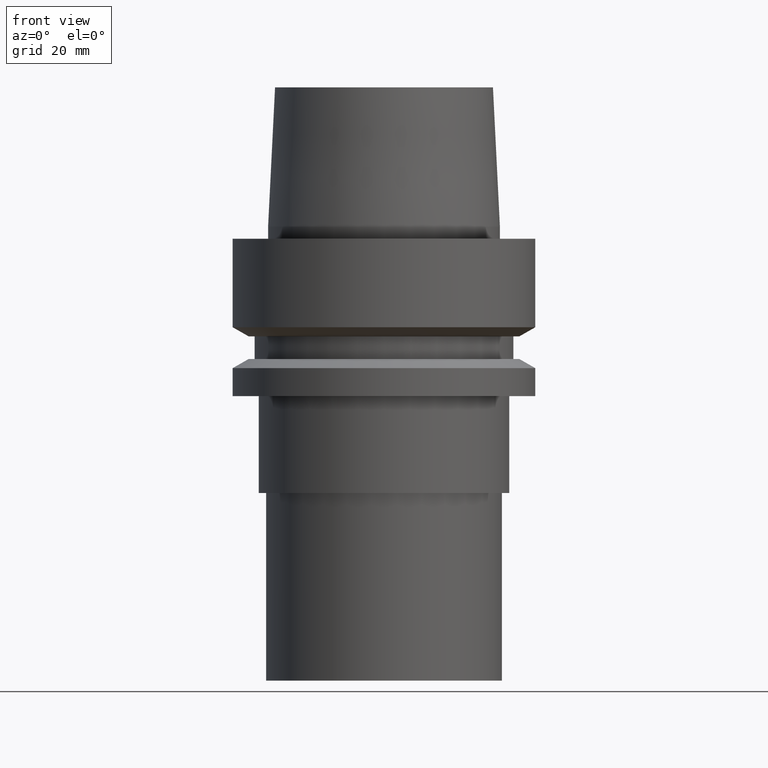
[diagram: clean part render]
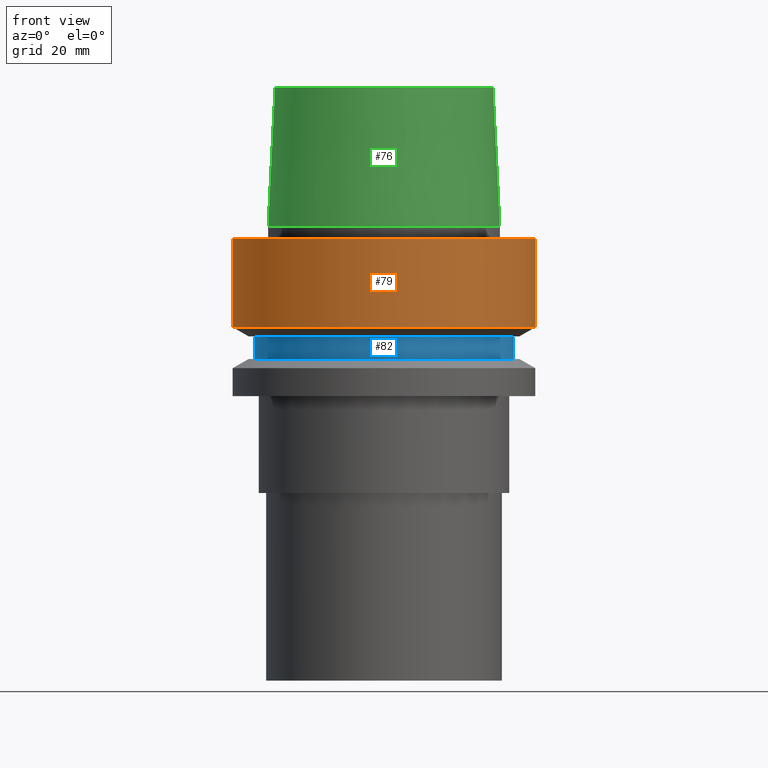
[diagram: same view with three faces highlighted in distinct colors, each labeled with its STEP entity id]
A machine part, front view with three faces highlighted in distinct colors.
Their STEP definitions:

[orange] entity #79 — the highlighted cylindrical surface (bore or boss wall) has radius 25 mm, axis along (-0, -0, 1).
#79=ADVANCED_FACE('',(#103,#104),#105,.T.);
#103=FACE_BOUND('',#149,.T.);
#104=FACE_BOUND('',#150,.T.);
#105=CYLINDRICAL_SURFACE('',#151,25.0);
#149=EDGE_LOOP('',(#203));
#150=EDGE_LOOP('',(#204));
#151=AXIS2_PLACEMENT_3D('',#205,#206,#207);
#203=ORIENTED_EDGE('',*,*,#266,.F.);
#204=ORIENTED_EDGE('',*,*,#265,.T.);
#205=CARTESIAN_POINT('',(4.47684973986342E-016,8.95369947972685E-016,-7.311250465));
#206=DIRECTION('',(-6.12323399573677E-017,-1.22464679914735E-016,1.0));
#207=DIRECTION('',(-1.23259516440783E-032,1.0,1.22464679914735E-016));
#265=EDGE_CURVE('',#283,#283,#284,.T.);
#266=EDGE_CURVE('',#285,#285,#286,.T.);
#283=VERTEX_POINT('',#313);
#284=CIRCLE('',#314,25.0);
#285=VERTEX_POINT('',#315);
#286=CIRCLE('',#316,25.0);
#313=CARTESIAN_POINT('',(-3.08148791101958E-031,25.0,3.06161699786838E-015));
#314=AXIS2_PLACEMENT_3D('',#346,#347,#348);
#315=CARTESIAN_POINT('',(8.95369947972684E-016,25.0,-14.62250093));
#316=AXIS2_PLACEMENT_3D('',#349,#350,#351);
#346=CARTESIAN_POINT('',(0.0,0.0,0.0));
#347=DIRECTION('',(6.12323399573677E-017,1.22464679914735E-016,-1.0));
#348=DIRECTION('',(-1.23259516440783E-032,1.0,1.22464679914735E-016));
#349=CARTESIAN_POINT('',(8.95369947972685E-016,1.79073989594537E-015,-14.62250093));
#350=DIRECTION('',(6.12323399573677E-017,1.22464679914735E-016,-1.0));
#351=DIRECTION('',(-1.23259516440783E-032,1.0,1.22464679914735E-016));

[blue] entity #82 — the highlighted cylindrical surface (bore or boss wall) has radius 21.5 mm, axis along (-0, -0, 1).
#82=ADVANCED_FACE('',(#112,#113),#114,.T.);
#112=FACE_BOUND('',#158,.T.);
#113=FACE_BOUND('',#159,.T.);
#114=CYLINDRICAL_SURFACE('',#160,21.5);
#158=EDGE_LOOP('',(#218));
#159=EDGE_LOOP('',(#219));
#160=AXIS2_PLACEMENT_3D('',#220,#221,#222);
#218=ORIENTED_EDGE('',*,*,#269,.F.);
#219=ORIENTED_EDGE('',*,*,#268,.T.);
#220=CARTESIAN_POINT('',(1.10218211923262E-015,2.20436423846524E-015,-18.0));
#221=DIRECTION('',(-6.12323399573677E-017,-1.22464679914735E-016,1.0));
#222=DIRECTION('',(-1.23259516440783E-032,1.0,1.22464679914735E-016));
#268=EDGE_CURVE('',#289,#289,#290,.T.);
#269=EDGE_CURVE('',#291,#291,#292,.T.);
#289=VERTEX_POINT('',#319);
#290=CIRCLE('',#320,21.5);
#291=VERTEX_POINT('',#321);
#292=CIRCLE('',#322,21.5);
#319=CARTESIAN_POINT('',(9.87371481812553E-016,21.5,-16.125));
#320=AXIS2_PLACEMENT_3D('',#355,#356,#357);
#321=CARTESIAN_POINT('',(1.21699275665268E-015,21.5,-19.875));
#322=AXIS2_PLACEMENT_3D('',#358,#359,#360);
#355=CARTESIAN_POINT('',(9.87371481812554E-016,1.97474296362511E-015,-16.125));
#356=DIRECTION('',(6.12323399573677E-017,1.22464679914735E-016,-1.0));
#357=DIRECTION('',(-1.23259516440783E-032,1.0,1.22464679914735E-016));
#358=CARTESIAN_POINT('',(1.21699275665268E-015,2.43398551330536E-015,-19.875));
#359=DIRECTION('',(6.12323399573677E-017,1.22464679914735E-016,-1.0));
#360=DIRECTION('',(-1.23259516440783E-032,1.0,1.22464679914735E-016));

[green] entity #76 — the highlighted conical surface has half-angle 2.862 deg.
#76=ADVANCED_FACE('',(#94,#95),#96,.T.);
#94=FACE_BOUND('',#140,.T.);
#95=FACE_BOUND('',#141,.T.);
#96=CONICAL_SURFACE('',#142,18.5750000005215,0.049958395676703);
#140=EDGE_LOOP('',(#188));
#141=EDGE_LOOP('',(#189));
#142=AXIS2_PLACEMENT_3D('',#190,#191,#192);
#188=ORIENTED_EDGE('',*,*,#263,.F.);
#189=ORIENTED_EDGE('',*,*,#262,.T.);
#190=CARTESIAN_POINT('',(-8.26636589424463E-016,-1.65327317884893E-015,13.5));
#191=DIRECTION('',(6.12323399573677E-017,1.22464679914735E-016,-1.0));
#192=DIRECTION('',(-1.23259516440783E-032,1.0,1.22464679914735E-016));
#262=EDGE_CURVE('',#277,#277,#278,.T.);
#263=EDGE_CURVE('',#279,#279,#280,.T.);
#277=VERTEX_POINT('',#307);
#278=CIRCLE('',#308,18.0000000010431);
#279=VERTEX_POINT('',#309);
#280=CIRCLE('',#310,19.15);
#307=CARTESIAN_POINT('',(-1.53080849893419E-015,18.0000000010431,25.0));
#308=AXIS2_PLACEMENT_3D('',#337,#338,#339);
#309=CARTESIAN_POINT('',(-1.22464679914736E-016,19.15,2.0));
#310=AXIS2_PLACEMENT_3D('',#340,#341,#342);
#337=CARTESIAN_POINT('',(-1.53080849893419E-015,-3.06161699786838E-015,25.0));
#338=DIRECTION('',(6.12323399573677E-017,1.22464679914735E-016,-1.0));
#339=DIRECTION('',(-1.23259516440783E-032,1.0,1.22464679914735E-016));
#340=CARTESIAN_POINT('',(-1.22464679914735E-016,-2.44929359829471E-016,2.0));
#341=DIRECTION('',(6.12323399573677E-017,1.22464679914735E-016,-1.0));
#342=DIRECTION('',(-1.23259516440783E-032,1.0,1.22464679914735E-016));